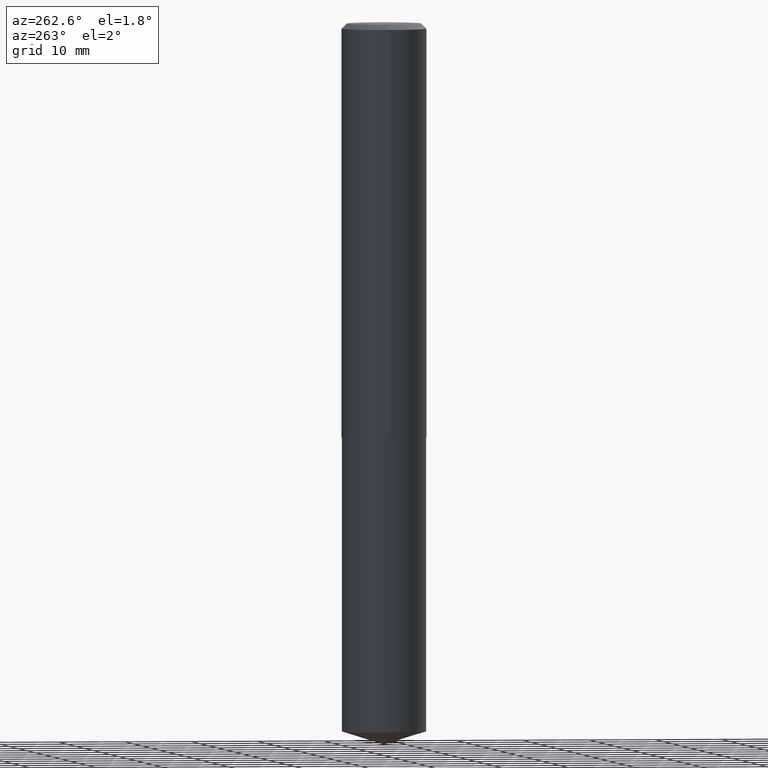
[diagram: clean part render]
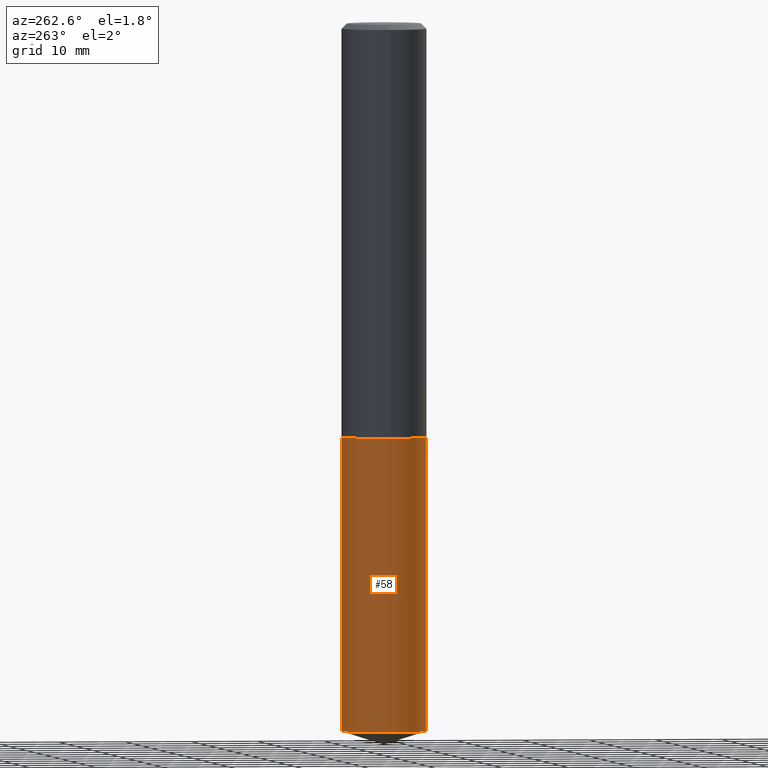
[diagram: same view with one face highlighted and labeled with its STEP entity id]
A machine part, auxiliary view. The second image highlights one B-rep face of the part: STEP entity #58.
In plain terms, the highlighted cylindrical surface (partial cylindrical patch) has radius 6.35 mm, axis along (-0, 0, 1).
Its self-contained STEP definition (entity closure, byte-faithful):
#1 = CIRCLE ( 'NONE', #60, 0.2500000000000000000 ) ;
#2 = DIRECTION ( 'NONE',  ( -2.445728055791702140E-29, 3.491110078650972544E-15, 1.000000000000000000 ) ) ;
#19 = CARTESIAN_POINT ( 'NONE',  ( 1.020092841309431033E-28, -1.456293727170468703E-14, -4.171175302780254057 ) ) ;
#28 = VECTOR ( 'NONE', #2, 39.37007874015748143 ) ;
#31 = LINE ( 'NONE', #57, #28 ) ;
#42 = EDGE_CURVE ( 'NONE', #292, #46, #1, .T. ) ;
#46 = VERTEX_POINT ( 'NONE', #52 ) ;
#52 = CARTESIAN_POINT ( 'NONE',  ( -1.745740669421464126E-15, -0.2500000000000144884, -4.171175302780253169 ) ) ;
#57 = CARTESIAN_POINT ( 'NONE',  ( -1.745740669421506724E-15, -0.2500000000000084932, -2.437999999999999279 ) ) ;
#58 = ADVANCED_FACE ( 'NONE', ( #239 ), #362, .T. ) ;
#60 = AXIS2_PLACEMENT_3D ( 'NONE', #19, #147, #333 ) ;
#87 = CARTESIAN_POINT ( 'NONE',  ( 5.962052949479363256E-29, -8.512231504099589034E-15, -2.438000000000000167 ) ) ;
#108 = ORIENTED_EDGE ( 'NONE', *, *, #290, .F. ) ;
#109 = ORIENTED_EDGE ( 'NONE', *, *, #152, .T. ) ;
#119 = CARTESIAN_POINT ( 'NONE',  ( 1.776356839400310024E-15, 0.2499999999999915068, -2.438000000000001055 ) ) ;
#126 = EDGE_CURVE ( 'NONE', #292, #390, #243, .T. ) ;
#128 = CARTESIAN_POINT ( 'NONE',  ( 1.776356839400351439E-15, 0.2499999999999853728, -4.171175302780255834 ) ) ;
#136 = VECTOR ( 'NONE', #242, 39.37007874015748143 ) ;
#147 = DIRECTION ( 'NONE',  ( -2.445728055791702140E-29, 3.491110078650972544E-15, 1.000000000000000000 ) ) ;
#152 = EDGE_CURVE ( 'NONE', #46, #205, #31, .T. ) ;
#161 = DIRECTION ( 'NONE',  ( -6.982962677686265922E-15, -1.000000000000000000, 3.278217592397115862E-15 ) ) ;
#168 = EDGE_LOOP ( 'NONE', ( #233, #203, #109, #108 ) ) ;
#203 = ORIENTED_EDGE ( 'NONE', *, *, #42, .T. ) ;
#205 = VERTEX_POINT ( 'NONE', #218 ) ;
#218 = CARTESIAN_POINT ( 'NONE',  ( -1.745740669421506724E-15, -0.2500000000000084932, -2.437999999999999723 ) ) ;
#233 = ORIENTED_EDGE ( 'NONE', *, *, #126, .F. ) ;
#239 = FACE_OUTER_BOUND ( 'NONE', #168, .T. ) ;
#240 = DIRECTION ( 'NONE',  ( -6.982962677686265922E-15, -1.000000000000000000, 3.278217592397115862E-15 ) ) ;
#242 = DIRECTION ( 'NONE',  ( -2.445728055791702140E-29, 3.491110078650972544E-15, 1.000000000000000000 ) ) ;
#243 = LINE ( 'NONE', #119, #136 ) ;
#254 = CARTESIAN_POINT ( 'NONE',  ( 5.962052949479364377E-29, -8.512231504099590611E-15, -2.438000000000000167 ) ) ;
#256 = AXIS2_PLACEMENT_3D ( 'NONE', #254, #320, #161 ) ;
#264 = CIRCLE ( 'NONE', #256, 0.2500000000000000000 ) ;
#283 = CARTESIAN_POINT ( 'NONE',  ( 1.776356839400352622E-15, 0.2499999999999915068, -2.438000000000001055 ) ) ;
#290 = EDGE_CURVE ( 'NONE', #390, #205, #264, .T. ) ;
#292 = VERTEX_POINT ( 'NONE', #128 ) ;
#320 = DIRECTION ( 'NONE',  ( -2.445728055791702140E-29, 3.491110078650972544E-15, 1.000000000000000000 ) ) ;
#333 = DIRECTION ( 'NONE',  ( -6.982962677686265922E-15, -1.000000000000000000, 4.370956789862821150E-15 ) ) ;
#334 = DIRECTION ( 'NONE',  ( -2.445728055791702140E-29, 3.491110078650972544E-15, 1.000000000000000000 ) ) ;
#362 = CYLINDRICAL_SURFACE ( 'NONE', #376, 0.2500000000000000000 ) ;
#376 = AXIS2_PLACEMENT_3D ( 'NONE', #87, #334, #240 ) ;
#390 = VERTEX_POINT ( 'NONE', #283 ) ;